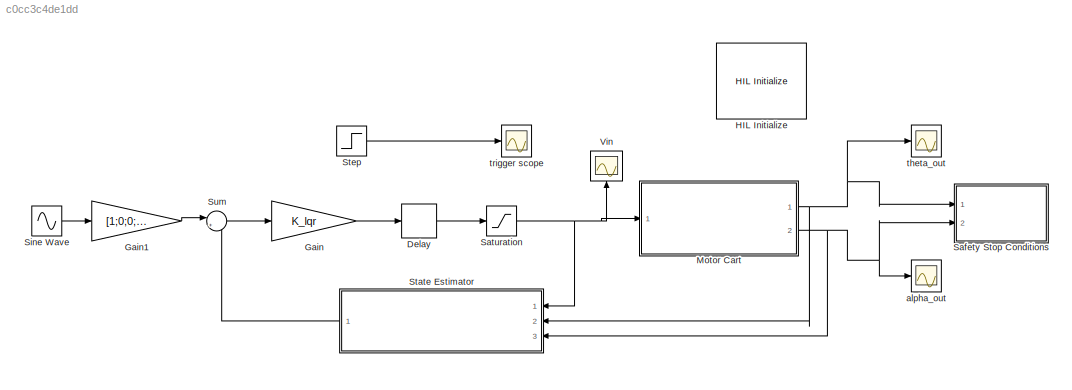
MODEL slx_c0cc3c4de1dd
KIND model
CONFIG AbsTol = auto
CONFIG FixedStep = T
CONFIG MaxStep = auto
CONFIG MinStep = auto
CONFIG RelTol = 1e-3
CONFIG SampleTimeConstraint = Unconstrained
CONFIG Solver = FixedStepDiscrete
CONFIG SolverMode = Auto
CONFIG SolverName = FixedStepDiscrete
CONFIG StartTime = 0.0
CONFIG StopTime = tstop
BLOCK [Delay] Delay
  DelayLength = 1
  InitialCondition = 0
  InputPortMap = u0
  Ports = [1, 1]
BLOCK [Gain] Gain
  Gain = K_lqr
  Multiplication = Matrix(K*u)
  OutDataTypeStr = Inherit: Inherit via internal rule
  ParamDataTypeStr = Inherit: Inherit via internal rule
  SaturateOnIntegerOverflow = off
BLOCK [Gain] Gain1
  Gain = [1;0;0;0]
  OutDataTypeStr = Inherit: Inherit via internal rule
  ParamDataTypeStr = Inherit: Inherit via internal rule
  SaturateOnIntegerOverflow = off
BLOCK [Reference] HIL Initialize  REF=quarc_library/Data Acquisition/Generic/Configuration/HIL Initialize
  AttributesFormatString = %<object_name> (%<board_type>-%<board_number>)
  Ports = []
  SourceBlock = quarc_library/Data Acquisition/Generic/Configuration/HIL Initialize
  SourceType = HIL Initialize
  UserDataPersistent = on
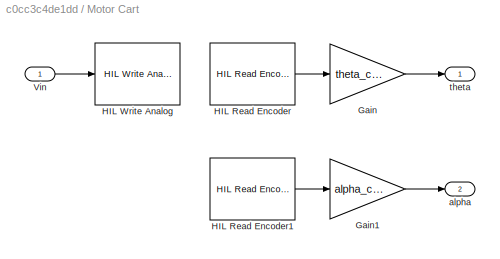
BLOCK [SubSystem] Motor Cart 
  Ports = [1, 2]
  RequestExecContextInheritance = off
  Variant = off
BLOCK [Gain] Motor Cart /Gain
  Gain = theta_cal
  OutDataTypeStr = Inherit: Inherit via internal rule
  ParamDataTypeStr = Inherit: Inherit via internal rule
  SaturateOnIntegerOverflow = off
BLOCK [Gain] Motor Cart /Gain1
  Gain = alpha_cal
  OutDataTypeStr = Inherit: Inherit via internal rule
  ParamDataTypeStr = Inherit: Inherit via internal rule
  SaturateOnIntegerOverflow = off
BLOCK [Reference] Motor Cart /HIL Read Encoder  REF=quarc_library/Data Acquisition/Generic/Immediate I//O/HIL Read Encoder
  AttributesFormatString = (%<object_name>)
  Ports = [0, 1]
  SourceBlock = quarc_library/Data Acquisition/Generic/Immediate I//O/HIL Read Encoder
  SourceType = HIL Read Encoder
  UserDataPersistent = on
BLOCK [Reference] Motor Cart /HIL Read Encoder1  REF=quarc_library/Data Acquisition/Generic/Immediate I//O/HIL Read Encoder
  AttributesFormatString = (%<object_name>)
  Ports = [0, 1]
  SourceBlock = quarc_library/Data Acquisition/Generic/Immediate I//O/HIL Read Encoder
  SourceType = HIL Read Encoder
  UserDataPersistent = on
BLOCK [Reference] Motor Cart /HIL Write Analog  REF=quarc_library/Data Acquisition/Generic/Immediate I//O/HIL Write Analog
  AttributesFormatString = (%<object_name>)
  Ports = [1]
  SourceBlock = quarc_library/Data Acquisition/Generic/Immediate I//O/HIL Write Analog
  SourceType = HIL Write Analog
  UserDataPersistent = on
BLOCK [Inport] Motor Cart /Vin
  IconDisplay = Port number
BLOCK [Outport] Motor Cart /alpha
  IconDisplay = Port number
  Port = 2
BLOCK [Outport] Motor Cart /theta
  IconDisplay = Port number
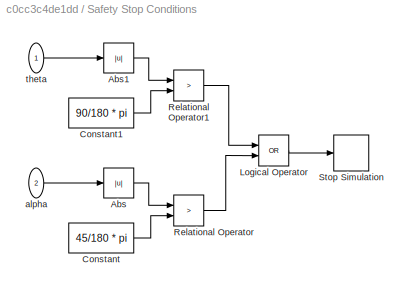
BLOCK [SubSystem] Safety Stop Conditions
  Ports = [2]
  RequestExecContextInheritance = off
  Variant = off
BLOCK [Abs] Safety Stop Conditions/Abs
  SaturateOnIntegerOverflow = off
BLOCK [Abs] Safety Stop Conditions/Abs1
  SaturateOnIntegerOverflow = off
BLOCK [Constant] Safety Stop Conditions/Constant
  Value = 45/180 * pi
BLOCK [Constant] Safety Stop Conditions/Constant1
  Value = 90/180 * pi
BLOCK [Logic] Safety Stop Conditions/Logical Operator
  AllPortsSameDT = off
  Operator = OR
  OutDataTypeStr = boolean
  Ports = [2, 1]
BLOCK [RelationalOperator] Safety Stop Conditions/Relational Operator
  InputSameDT = off
  Operator = >
  OutDataTypeStr = boolean
  Ports = [2, 1]
BLOCK [RelationalOperator] Safety Stop Conditions/Relational Operator1
  InputSameDT = off
  Operator = >
  OutDataTypeStr = boolean
  Ports = [2, 1]
BLOCK [Stop] Safety Stop Conditions/Stop Simulation
BLOCK [Inport] Safety Stop Conditions/alpha
  IconDisplay = Port number
  Port = 2
BLOCK [Inport] Safety Stop Conditions/theta
  IconDisplay = Port number
BLOCK [Saturate] Saturation
  InputPortMap = u0
  LowerLimit = -10
  Ports = [1, 1]
  UpperLimit = 10
BLOCK [Sin] Sine Wave
  Amplitude = theta_ref
  Frequency = theta_freq
  Ports = [0, 1]
  SampleTime = T
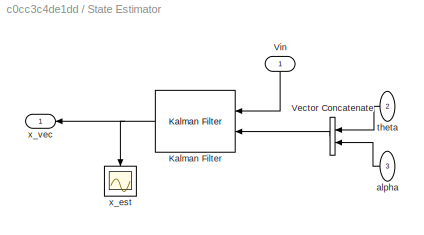
BLOCK [SubSystem] State Estimator
  Ports = [3, 1]
  RequestExecContextInheritance = off
  Variant = off
BLOCK [Reference] State Estimator/Kalman Filter  REF=ctrlSharedLib/Kalman Filter
  Ports = [2, 1]
  SourceBlock = ctrlSharedLib/Kalman Filter
  SourceType = ctrlKalmanFilter
BLOCK [Concatenate] State Estimator/Vector Concatenate
  Ports = [2, 1]
BLOCK [Inport] State Estimator/Vin
  IconDisplay = Port number
BLOCK [Inport] State Estimator/alpha
  IconDisplay = Port number
  Port = 3
BLOCK [Inport] State Estimator/theta
  IconDisplay = Port number
  Port = 2
BLOCK [Scope] State Estimator/x_est
  Ports = [1]
  ScopeSpecificationString = Simulink.scopes.TimeScopeBlockCfg('CurrentConfiguration', extmgr.ConfigurationSet(extmgr.Configuration('Core','General UI',true),extmgr.Configuration('Core','Source UI',true),extmgr.Configuration('Sources','WiredSimulink',true,'DataLoggingVariableName','x_est','DataLogging',true,'DataLoggingSaveFormat','StructureWithTime'),extmgr.Configuration('Visuals','Time Domain',true,'SerializedDisplays',{str...<+1576ch>
BLOCK [Outport] State Estimator/x_vec
  IconDisplay = Port number
BLOCK [Step] Step
  SampleTime = 0
  Time = 0.001
BLOCK [Sum] Sum
  IconShape = round
  InputSameDT = off
  Inputs = |+-
  OutDataTypeStr = Inherit: Inherit via internal rule
  Ports = [2, 1]
  SaturateOnIntegerOverflow = off
BLOCK [Scope] Vin
  Ports = [1]
  ScopeSpecificationString = Simulink.scopes.TimeScopeBlockCfg('CurrentConfiguration', extmgr.ConfigurationSet(extmgr.Configuration('Core','General UI',true),extmgr.Configuration('Core','Source UI',true),extmgr.Configuration('Sources','WiredSimulink',true,'DataLoggingVariableName','Vin','DataLogging',true,'DataLoggingSaveFormat','Array'),extmgr.Configuration('Visuals','Time Domain',true,'SerializedDisplays',{struct('MinYLimRe...<+1545ch>
BLOCK [Scope] alpha_out 
  Ports = [1]
  ScopeSpecificationString = Simulink.scopes.TimeScopeBlockCfg('CurrentConfiguration', extmgr.ConfigurationSet(extmgr.Configuration('Core','General UI',true),extmgr.Configuration('Core','Source UI',true),extmgr.Configuration('Sources','WiredSimulink',true,'DataLoggingVariableName','alpha_out','DataLogging',true,'DataLoggingSaveFormat','Array'),extmgr.Configuration('Visuals','Time Domain',true,'SerializedDisplays',{struct('Min...<+1516ch>
BLOCK [Scope] theta_out
  Ports = [1]
  ScopeSpecificationString = Simulink.scopes.TimeScopeBlockCfg('CurrentConfiguration', extmgr.ConfigurationSet(extmgr.Configuration('Core','General UI',true),extmgr.Configuration('Core','Source UI',true),extmgr.Configuration('Sources','WiredSimulink',true,'DataLoggingVariableName','theta_out','DataLogging',true,'DataLoggingSaveFormat','Array'),extmgr.Configuration('Visuals','Time Domain',true,'SerializedDisplays',{struct('Min...<+1521ch>
BLOCK [Scope] trigger scope
  ExtModeLoggingTrig = on
  Ports = [1]
  ScopeSpecificationString = Simulink.scopes.TimeScopeBlockCfg('CurrentConfiguration', extmgr.ConfigurationSet(extmgr.Configuration('Core','General UI',true),extmgr.Configuration('Core','Source UI',true),extmgr.Configuration('Sources','WiredSimulink',true,'DataLogging',true,'DataLoggingSaveFormat','Array'),extmgr.Configuration('Visuals','Time Domain',true,'SerializedDisplays',{struct('MinYLimReal','0.9','MaxYLimReal','1.1','Y...<+1341ch>
LINE Delay:1 -> Saturation:1
LINE Gain1:1 -> Sum:1
LINE Gain:1 -> Delay:1
LINE Motor Cart /Gain1:1 -> Motor Cart /alpha:1
LINE Motor Cart /Gain:1 -> Motor Cart /theta:1
LINE Motor Cart /HIL Read Encoder1:1 -> Motor Cart /Gain1:1
LINE Motor Cart /HIL Read Encoder:1 -> Motor Cart /Gain:1
LINE Motor Cart /Vin:1 -> Motor Cart /HIL Write Analog:1
NET Motor Cart :1 -> Safety Stop Conditions:1, State Estimator:2, theta_out:1
NET Motor Cart :2 -> Safety Stop Conditions:2, State Estimator:3, alpha_out :1
LINE Safety Stop Conditions/Abs1:1 -> Safety Stop Conditions/Relational Operator1:1
LINE Safety Stop Conditions/Abs:1 -> Safety Stop Conditions/Relational Operator:1
LINE Safety Stop Conditions/Constant1:1 -> Safety Stop Conditions/Relational Operator1:2
LINE Safety Stop Conditions/Constant:1 -> Safety Stop Conditions/Relational Operator:2
LINE Safety Stop Conditions/Logical Operator:1 -> Safety Stop Conditions/Stop Simulation:1
LINE Safety Stop Conditions/Relational Operator1:1 -> Safety Stop Conditions/Logical Operator:1
LINE Safety Stop Conditions/Relational Operator:1 -> Safety Stop Conditions/Logical Operator:2
LINE Safety Stop Conditions/alpha:1 -> Safety Stop Conditions/Abs:1
LINE Safety Stop Conditions/theta:1 -> Safety Stop Conditions/Abs1:1
NET Saturation:1 -> Motor Cart :1, State Estimator:1, Vin:1
LINE Sine Wave:1 -> Gain1:1
NET State Estimator/Kalman Filter:1 -> State Estimator/x_est:1, State Estimator/x_vec:1
LINE State Estimator/Vector Concatenate:1 -> State Estimator/Kalman Filter:2
LINE State Estimator/Vin:1 -> State Estimator/Kalman Filter:1
LINE State Estimator/alpha:1 -> State Estimator/Vector Concatenate:2
LINE State Estimator/theta:1 -> State Estimator/Vector Concatenate:1
LINE State Estimator:1 -> Sum:2
LINE Step:1 -> trigger scope:1
LINE Sum:1 -> Gain:1
note: NET lines group one-source signal fan-out (src -> all destinations, sorted); 1:1 wires keep LINE
